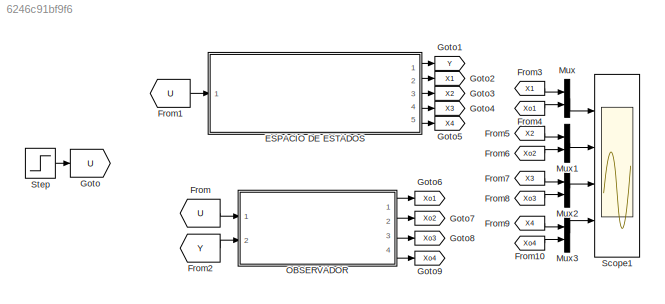
MODEL slx_6246c91bf9f6
KIND model
CONFIG AbsTol = auto
CONFIG EnableMultiTasking = off
CONFIG FixedStep = 0.001
CONFIG MaxStep = auto
CONFIG MinStep = auto
CONFIG RelTol = 1e-3
CONFIG SampleTimeConstraint = Unconstrained
CONFIG SolverName = ode4
CONFIG StartTime = 0.0
CONFIG StopTime = 15
WORKSPACE source: mxarray member
WORKSPACE ci = 700
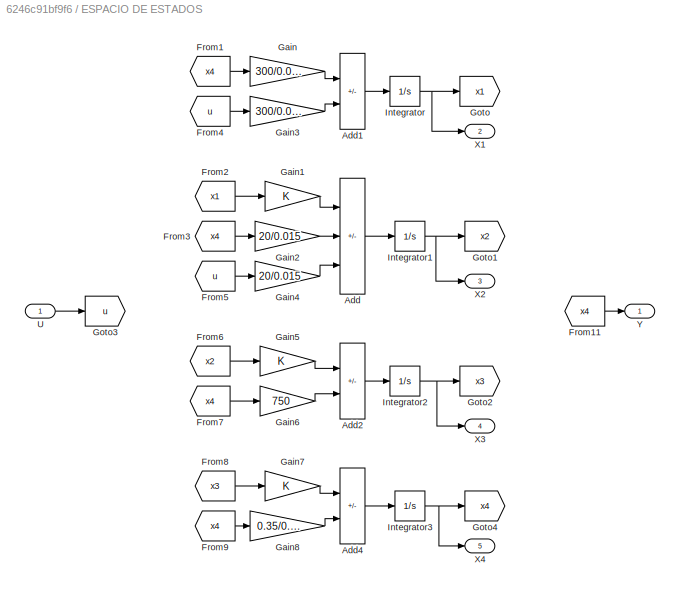
BLOCK [SubSystem] ESPACIO DE ESTADOS
  Ports = [1, 5]
  RequestExecContextInheritance = off
BLOCK [Sum] ESPACIO DE ESTADOS/Add
  IconShape = rectangular
  Inputs = +-+
  Ports = [3, 1]
BLOCK [Sum] ESPACIO DE ESTADOS/Add1
  IconShape = rectangular
  Inputs = -+
  Ports = [2, 1]
BLOCK [Sum] ESPACIO DE ESTADOS/Add2
  IconShape = rectangular
  Inputs = +-
  Ports = [2, 1]
BLOCK [Sum] ESPACIO DE ESTADOS/Add4
  IconShape = rectangular
  Inputs = +-
  Ports = [2, 1]
BLOCK [From] ESPACIO DE ESTADOS/From1
  GotoTag = x4
BLOCK [From] ESPACIO DE ESTADOS/From11
  GotoTag = x4
BLOCK [From] ESPACIO DE ESTADOS/From2
  GotoTag = x1
BLOCK [From] ESPACIO DE ESTADOS/From3
  GotoTag = x4
BLOCK [From] ESPACIO DE ESTADOS/From4
  GotoTag = u
BLOCK [From] ESPACIO DE ESTADOS/From5
  GotoTag = u
BLOCK [From] ESPACIO DE ESTADOS/From6
  GotoTag = x2
BLOCK [From] ESPACIO DE ESTADOS/From7
  GotoTag = x4
BLOCK [From] ESPACIO DE ESTADOS/From8
  GotoTag = x3
BLOCK [From] ESPACIO DE ESTADOS/From9
  GotoTag = x4
BLOCK [Gain] ESPACIO DE ESTADOS/Gain
  Gain = 300/0.015
BLOCK [Gain] ESPACIO DE ESTADOS/Gain1
BLOCK [Gain] ESPACIO DE ESTADOS/Gain2
  Gain = 20/0.015
BLOCK [Gain] ESPACIO DE ESTADOS/Gain3
  Gain = 300/0.015
BLOCK [Gain] ESPACIO DE ESTADOS/Gain4
  Gain = 20/0.015
BLOCK [Gain] ESPACIO DE ESTADOS/Gain5
BLOCK [Gain] ESPACIO DE ESTADOS/Gain6
  Gain = 750
BLOCK [Gain] ESPACIO DE ESTADOS/Gain7
BLOCK [Gain] ESPACIO DE ESTADOS/Gain8
  Gain = 0.35/0.015
BLOCK [Goto] ESPACIO DE ESTADOS/Goto
  GotoTag = x1
BLOCK [Goto] ESPACIO DE ESTADOS/Goto1
  GotoTag = x2
BLOCK [Goto] ESPACIO DE ESTADOS/Goto2
  GotoTag = x3
BLOCK [Goto] ESPACIO DE ESTADOS/Goto3
  GotoTag = u
BLOCK [Goto] ESPACIO DE ESTADOS/Goto4
  GotoTag = x4
BLOCK [Integrator] ESPACIO DE ESTADOS/Integrator
  InitialCondition = ci
  Ports = [1, 1]
BLOCK [Integrator] ESPACIO DE ESTADOS/Integrator1
  InitialCondition = 250
  Ports = [1, 1]
BLOCK [Integrator] ESPACIO DE ESTADOS/Integrator2
  InitialCondition = ci
  Ports = [1, 1]
BLOCK [Integrator] ESPACIO DE ESTADOS/Integrator3
  InitialCondition = ci
  Ports = [1, 1]
BLOCK [Inport] ESPACIO DE ESTADOS/U
BLOCK [Outport] ESPACIO DE ESTADOS/X1
  Port = 2
BLOCK [Outport] ESPACIO DE ESTADOS/X2
  Port = 3
BLOCK [Outport] ESPACIO DE ESTADOS/X3
  Port = 4
BLOCK [Outport] ESPACIO DE ESTADOS/X4
  Port = 5
BLOCK [Outport] ESPACIO DE ESTADOS/Y
BLOCK [From] From
  GotoTag = U
BLOCK [From] From1
  GotoTag = U
BLOCK [From] From10
  GotoTag = Xo4
BLOCK [From] From2
  GotoTag = Y
BLOCK [From] From3
  GotoTag = X1
BLOCK [From] From4
  GotoTag = Xo1
BLOCK [From] From5
  GotoTag = X2
BLOCK [From] From6
  GotoTag = Xo2
BLOCK [From] From7
  GotoTag = X3
BLOCK [From] From8
  GotoTag = Xo3
BLOCK [From] From9
  GotoTag = X4
BLOCK [Goto] Goto
  GotoTag = U
BLOCK [Goto] Goto1
  GotoTag = Y
BLOCK [Goto] Goto2
  GotoTag = X1
BLOCK [Goto] Goto3
  GotoTag = X2
BLOCK [Goto] Goto4
  GotoTag = X3
BLOCK [Goto] Goto5
  GotoTag = X4
BLOCK [Goto] Goto6
  GotoTag = Xo1
BLOCK [Goto] Goto7
  GotoTag = Xo2
BLOCK [Goto] Goto8
  GotoTag = Xo3
BLOCK [Goto] Goto9
  GotoTag = Xo4
BLOCK [Mux] Mux
  DisplayOption = bar
  Inputs = 2
  Ports = [2, 1]
BLOCK [Mux] Mux1
  DisplayOption = bar
  Inputs = 2
  Ports = [2, 1]
BLOCK [Mux] Mux2
  DisplayOption = bar
  Inputs = 2
  Ports = [2, 1]
BLOCK [Mux] Mux3
  DisplayOption = bar
  Inputs = 2
  Ports = [2, 1]
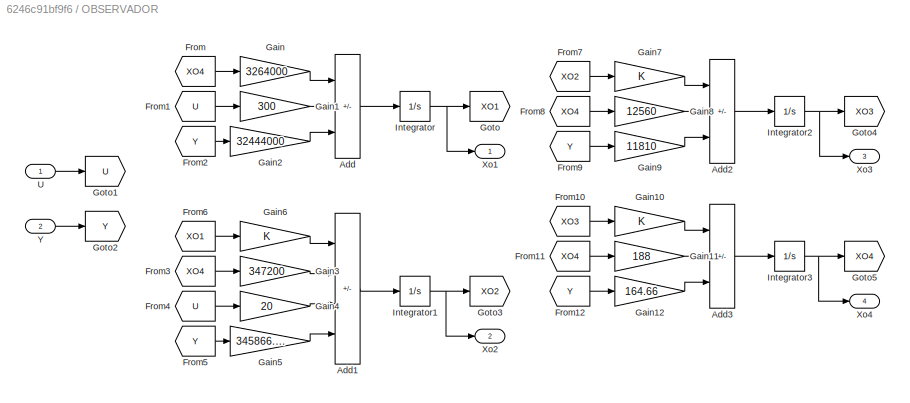
BLOCK [SubSystem] OBSERVADOR
  Ports = [2, 4]
  RequestExecContextInheritance = off
BLOCK [Sum] OBSERVADOR/Add
  IconShape = rectangular
  Inputs = -++
  Ports = [3, 1]
BLOCK [Sum] OBSERVADOR/Add1
  IconShape = rectangular
  Inputs = +-++
  Ports = [4, 1]
BLOCK [Sum] OBSERVADOR/Add2
  IconShape = rectangular
  Inputs = +-+
  Ports = [3, 1]
BLOCK [Sum] OBSERVADOR/Add3
  IconShape = rectangular
  Inputs = +-+
  Ports = [3, 1]
BLOCK [From] OBSERVADOR/From
  GotoTag = XO4
BLOCK [From] OBSERVADOR/From1
  GotoTag = U
BLOCK [From] OBSERVADOR/From10
  GotoTag = XO3
BLOCK [From] OBSERVADOR/From11
  GotoTag = XO4
BLOCK [From] OBSERVADOR/From12
  GotoTag = Y
BLOCK [From] OBSERVADOR/From2
  GotoTag = Y
BLOCK [From] OBSERVADOR/From3
  GotoTag = XO4
BLOCK [From] OBSERVADOR/From4
  GotoTag = U
BLOCK [From] OBSERVADOR/From5
  GotoTag = Y
BLOCK [From] OBSERVADOR/From6
  GotoTag = XO1
BLOCK [From] OBSERVADOR/From7
  GotoTag = XO2
BLOCK [From] OBSERVADOR/From8
  GotoTag = XO4
BLOCK [From] OBSERVADOR/From9
  GotoTag = Y
BLOCK [Gain] OBSERVADOR/Gain
  Gain = 3264000
BLOCK [Gain] OBSERVADOR/Gain1
  Gain = 300
BLOCK [Gain] OBSERVADOR/Gain10
BLOCK [Gain] OBSERVADOR/Gain11
  Gain = 188
BLOCK [Gain] OBSERVADOR/Gain12
  Gain = 164.66
BLOCK [Gain] OBSERVADOR/Gain2
  Gain = 32444000
BLOCK [Gain] OBSERVADOR/Gain3
  Gain = 347200
BLOCK [Gain] OBSERVADOR/Gain4
  Gain = 20
BLOCK [Gain] OBSERVADOR/Gain5
  Gain = 345866.66
BLOCK [Gain] OBSERVADOR/Gain6
BLOCK [Gain] OBSERVADOR/Gain7
BLOCK [Gain] OBSERVADOR/Gain8
  Gain = 12560
BLOCK [Gain] OBSERVADOR/Gain9
  Gain = 11810
BLOCK [Goto] OBSERVADOR/Goto
  GotoTag = XO1
BLOCK [Goto] OBSERVADOR/Goto1
  GotoTag = U
BLOCK [Goto] OBSERVADOR/Goto2
  GotoTag = Y
BLOCK [Goto] OBSERVADOR/Goto3
  GotoTag = XO2
BLOCK [Goto] OBSERVADOR/Goto4
  GotoTag = XO3
BLOCK [Goto] OBSERVADOR/Goto5
  GotoTag = XO4
BLOCK [Integrator] OBSERVADOR/Integrator
  Ports = [1, 1]
BLOCK [Integrator] OBSERVADOR/Integrator1
  Ports = [1, 1]
BLOCK [Integrator] OBSERVADOR/Integrator2
  Ports = [1, 1]
BLOCK [Integrator] OBSERVADOR/Integrator3
  Ports = [1, 1]
BLOCK [Inport] OBSERVADOR/U
BLOCK [Outport] OBSERVADOR/Xo1
BLOCK [Outport] OBSERVADOR/Xo2
  Port = 2
BLOCK [Outport] OBSERVADOR/Xo3
  Port = 3
BLOCK [Outport] OBSERVADOR/Xo4
  Port = 4
BLOCK [Inport] OBSERVADOR/Y
  Port = 2
BLOCK [Scope] Scope1
  Floating = off
  NumInputPorts = 4
  Ports = [4]
  ScopeSpecificationString = Simulink.scopes.TimeScopeBlockCfg('CurrentConfiguration', extmgr.ConfigurationSet(extmgr.Configuration('Core','General UI',true),extmgr.Configuration('Core','Source UI',true),extmgr.Configuration('Sources','WiredSimulink',true,'DataLoggingVariableName','ScopeData1'),extmgr.Configuration('Visuals','Time Domain',true,'SerializedDisplays',{struct('MinYLimReal','-491195032.25609','MaxYLimReal','526265...<+3622ch>
BLOCK [Step] Step
  SampleTime = 0
LINE ESPACIO DE ESTADOS/Add1:1 -> ESPACIO DE ESTADOS/Integrator:1
LINE ESPACIO DE ESTADOS/Add2:1 -> ESPACIO DE ESTADOS/Integrator2:1
LINE ESPACIO DE ESTADOS/Add4:1 -> ESPACIO DE ESTADOS/Integrator3:1
LINE ESPACIO DE ESTADOS/Add:1 -> ESPACIO DE ESTADOS/Integrator1:1
LINE ESPACIO DE ESTADOS/From11:1 -> ESPACIO DE ESTADOS/Y:1
LINE ESPACIO DE ESTADOS/From1:1 -> ESPACIO DE ESTADOS/Gain:1
LINE ESPACIO DE ESTADOS/From2:1 -> ESPACIO DE ESTADOS/Gain1:1
LINE ESPACIO DE ESTADOS/From3:1 -> ESPACIO DE ESTADOS/Gain2:1
LINE ESPACIO DE ESTADOS/From4:1 -> ESPACIO DE ESTADOS/Gain3:1
LINE ESPACIO DE ESTADOS/From5:1 -> ESPACIO DE ESTADOS/Gain4:1
LINE ESPACIO DE ESTADOS/From6:1 -> ESPACIO DE ESTADOS/Gain5:1
LINE ESPACIO DE ESTADOS/From7:1 -> ESPACIO DE ESTADOS/Gain6:1
LINE ESPACIO DE ESTADOS/From8:1 -> ESPACIO DE ESTADOS/Gain7:1
LINE ESPACIO DE ESTADOS/From9:1 -> ESPACIO DE ESTADOS/Gain8:1
LINE ESPACIO DE ESTADOS/Gain1:1 -> ESPACIO DE ESTADOS/Add:1
LINE ESPACIO DE ESTADOS/Gain2:1 -> ESPACIO DE ESTADOS/Add:2
LINE ESPACIO DE ESTADOS/Gain3:1 -> ESPACIO DE ESTADOS/Add1:2
LINE ESPACIO DE ESTADOS/Gain4:1 -> ESPACIO DE ESTADOS/Add:3
LINE ESPACIO DE ESTADOS/Gain5:1 -> ESPACIO DE ESTADOS/Add2:1
LINE ESPACIO DE ESTADOS/Gain6:1 -> ESPACIO DE ESTADOS/Add2:2
LINE ESPACIO DE ESTADOS/Gain7:1 -> ESPACIO DE ESTADOS/Add4:1
LINE ESPACIO DE ESTADOS/Gain8:1 -> ESPACIO DE ESTADOS/Add4:2
LINE ESPACIO DE ESTADOS/Gain:1 -> ESPACIO DE ESTADOS/Add1:1
NET ESPACIO DE ESTADOS/Integrator1:1 -> ESPACIO DE ESTADOS/Goto1:1, ESPACIO DE ESTADOS/X2:1
NET ESPACIO DE ESTADOS/Integrator2:1 -> ESPACIO DE ESTADOS/Goto2:1, ESPACIO DE ESTADOS/X3:1
NET ESPACIO DE ESTADOS/Integrator3:1 -> ESPACIO DE ESTADOS/Goto4:1, ESPACIO DE ESTADOS/X4:1
NET ESPACIO DE ESTADOS/Integrator:1 -> ESPACIO DE ESTADOS/Goto:1, ESPACIO DE ESTADOS/X1:1
LINE ESPACIO DE ESTADOS/U:1 -> ESPACIO DE ESTADOS/Goto3:1
LINE ESPACIO DE ESTADOS:1 -> Goto1:1
LINE ESPACIO DE ESTADOS:2 -> Goto2:1
LINE ESPACIO DE ESTADOS:3 -> Goto3:1
LINE ESPACIO DE ESTADOS:4 -> Goto4:1
LINE ESPACIO DE ESTADOS:5 -> Goto5:1
LINE From10:1 -> Mux3:2
LINE From1:1 -> ESPACIO DE ESTADOS:1
LINE From2:1 -> OBSERVADOR:2
LINE From3:1 -> Mux:1
LINE From4:1 -> Mux:2
LINE From5:1 -> Mux1:1
LINE From6:1 -> Mux1:2
LINE From7:1 -> Mux2:1
LINE From8:1 -> Mux2:2
LINE From9:1 -> Mux3:1
LINE From:1 -> OBSERVADOR:1
LINE Mux1:1 -> Scope1:2
LINE Mux2:1 -> Scope1:3
LINE Mux3:1 -> Scope1:4
LINE Mux:1 -> Scope1:1
LINE OBSERVADOR/Add1:1 -> OBSERVADOR/Integrator1:1
LINE OBSERVADOR/Add2:1 -> OBSERVADOR/Integrator2:1
LINE OBSERVADOR/Add3:1 -> OBSERVADOR/Integrator3:1
LINE OBSERVADOR/Add:1 -> OBSERVADOR/Integrator:1
LINE OBSERVADOR/From10:1 -> OBSERVADOR/Gain10:1
LINE OBSERVADOR/From11:1 -> OBSERVADOR/Gain11:1
LINE OBSERVADOR/From12:1 -> OBSERVADOR/Gain12:1
LINE OBSERVADOR/From1:1 -> OBSERVADOR/Gain1:1
LINE OBSERVADOR/From2:1 -> OBSERVADOR/Gain2:1
LINE OBSERVADOR/From3:1 -> OBSERVADOR/Gain3:1
LINE OBSERVADOR/From4:1 -> OBSERVADOR/Gain4:1
LINE OBSERVADOR/From5:1 -> OBSERVADOR/Gain5:1
LINE OBSERVADOR/From6:1 -> OBSERVADOR/Gain6:1
LINE OBSERVADOR/From7:1 -> OBSERVADOR/Gain7:1
LINE OBSERVADOR/From8:1 -> OBSERVADOR/Gain8:1
LINE OBSERVADOR/From9:1 -> OBSERVADOR/Gain9:1
LINE OBSERVADOR/From:1 -> OBSERVADOR/Gain:1
LINE OBSERVADOR/Gain10:1 -> OBSERVADOR/Add3:1
LINE OBSERVADOR/Gain11:1 -> OBSERVADOR/Add3:2
LINE OBSERVADOR/Gain12:1 -> OBSERVADOR/Add3:3
LINE OBSERVADOR/Gain1:1 -> OBSERVADOR/Add:2
LINE OBSERVADOR/Gain2:1 -> OBSERVADOR/Add:3
LINE OBSERVADOR/Gain3:1 -> OBSERVADOR/Add1:2
LINE OBSERVADOR/Gain4:1 -> OBSERVADOR/Add1:3
LINE OBSERVADOR/Gain5:1 -> OBSERVADOR/Add1:4
LINE OBSERVADOR/Gain6:1 -> OBSERVADOR/Add1:1
LINE OBSERVADOR/Gain7:1 -> OBSERVADOR/Add2:1
LINE OBSERVADOR/Gain8:1 -> OBSERVADOR/Add2:2
LINE OBSERVADOR/Gain9:1 -> OBSERVADOR/Add2:3
LINE OBSERVADOR/Gain:1 -> OBSERVADOR/Add:1
NET OBSERVADOR/Integrator1:1 -> OBSERVADOR/Goto3:1, OBSERVADOR/Xo2:1
NET OBSERVADOR/Integrator2:1 -> OBSERVADOR/Goto4:1, OBSERVADOR/Xo3:1
NET OBSERVADOR/Integrator3:1 -> OBSERVADOR/Goto5:1, OBSERVADOR/Xo4:1
NET OBSERVADOR/Integrator:1 -> OBSERVADOR/Goto:1, OBSERVADOR/Xo1:1
LINE OBSERVADOR/U:1 -> OBSERVADOR/Goto1:1
LINE OBSERVADOR/Y:1 -> OBSERVADOR/Goto2:1
LINE OBSERVADOR:1 -> Goto6:1
LINE OBSERVADOR:2 -> Goto7:1
LINE OBSERVADOR:3 -> Goto8:1
LINE OBSERVADOR:4 -> Goto9:1
LINE Step:1 -> Goto:1
note: NET lines group one-source signal fan-out (src -> all destinations, sorted); 1:1 wires keep LINE
